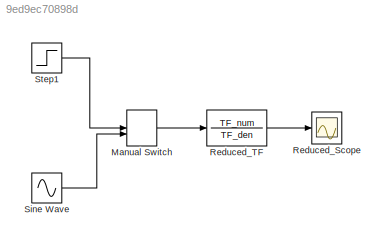
MODEL slx_9ed9ec70898d
KIND model
CONFIG AbsTol = auto
CONFIG EnableMultiTasking = off
CONFIG FixedStep = auto
CONFIG MaxStep = auto
CONFIG MinStep = auto
CONFIG RelTol = 1e-3
CONFIG SampleTimeConstraint = Unconstrained
CONFIG SolverName = VariableStepAuto
CONFIG StartTime = 0.0
CONFIG StopTime = 10
BLOCK [ManualSwitch] Manual Switch
BLOCK [Scope] Reduced_Scope
  Floating = off
  NumInputPorts = 1
  ScopeSpecificationString = Simulink.scopes.TimeScopeBlockCfg('CurrentConfiguration', extmgr.ConfigurationSet(extmgr.Configuration('Core','General UI',true),extmgr.Configuration('Core','Source UI',true),extmgr.Configuration('Sources','WiredSimulink',true),extmgr.Configuration('Visuals','Time Domain',true,'SerializedDisplays',{struct('MinYLimReal','-62809.98963','MaxYLimReal','6979.77288','YLabelReal','','MinYLimMag','   0.00...<+1501ch>
BLOCK [TransferFcn] Reduced_TF
  Denominator = TF_den
  Numerator = TF_num
BLOCK [Sin] Sine Wave
  SampleTime = 0
BLOCK [Step] Step1
  SampleTime = 0
  Time = 0
LINE Manual Switch:1 -> Reduced_TF:1
LINE Reduced_TF:1 -> Reduced_Scope:1
LINE Sine Wave:1 -> Manual Switch:2
LINE Step1:1 -> Manual Switch:1
